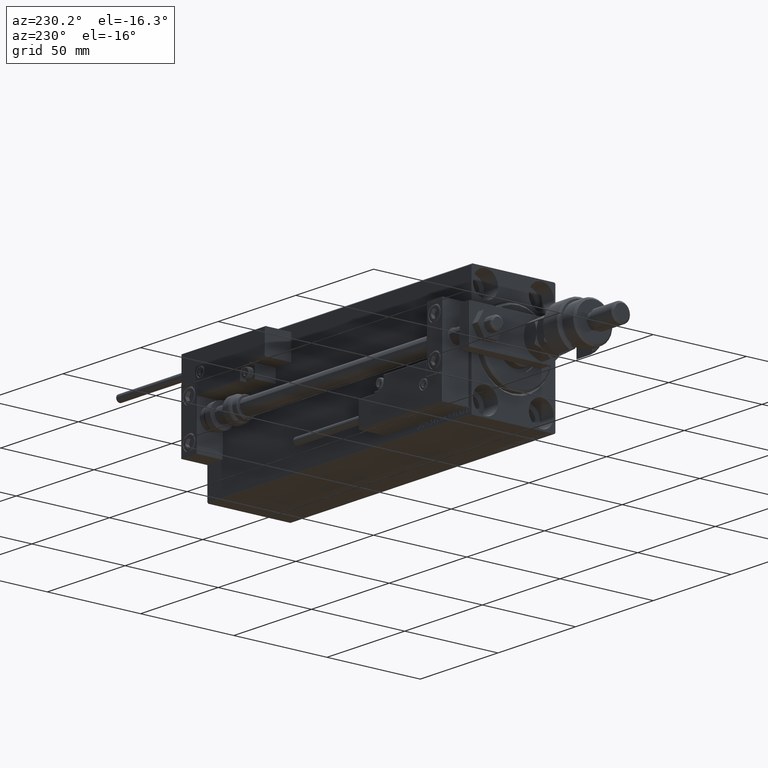
[diagram: clean part render]
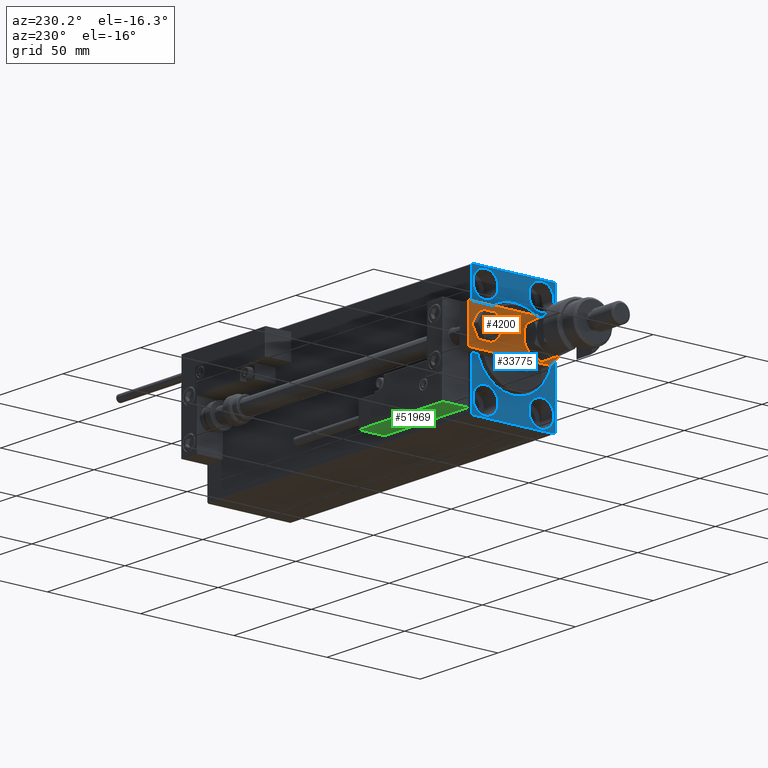
[diagram: same view with three faces highlighted in distinct colors, each labeled with its STEP entity id]
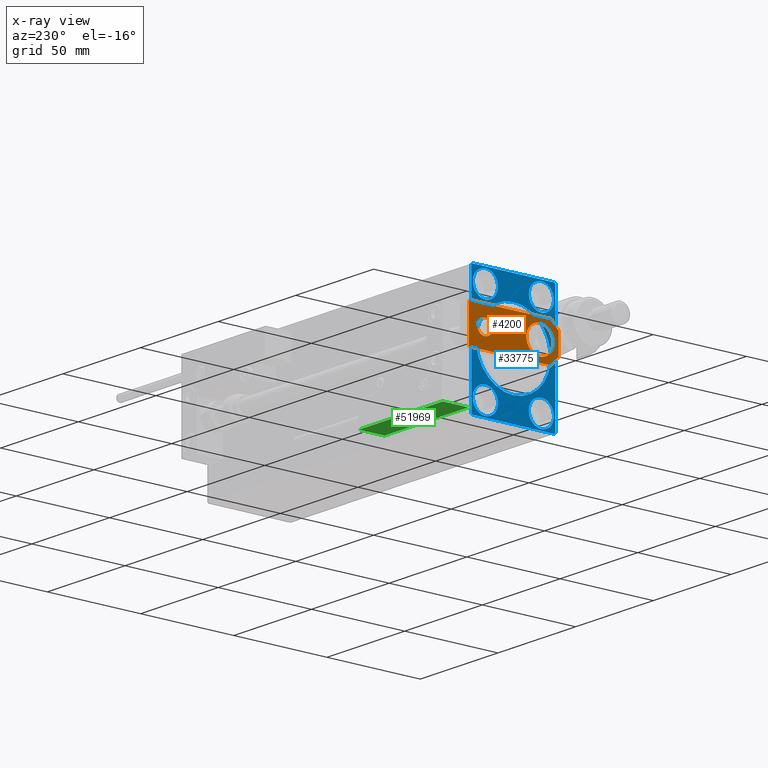
[diagram: x-ray of the same camera — body ghosted, the three highlighted faces saturated]
A machine part, auxiliary view with three faces highlighted in distinct colors.
The next image is the same camera in x-ray (body ghosted, the three faces saturated) — at least one of them is partly hidden behind the body in this view.
Their STEP definitions:

[orange] entity #4200 — the highlighted planar face has unit normal (-1, 0, 0).
#1559 = CARTESIAN_POINT ( 'NONE',  ( 10.00000000000000533, 4.239999999999986890, 6.000000000000000000 ) ) ;
#2961 = VECTOR ( 'NONE', #25885, 999.9999999999998863 ) ;
#3668 = ORIENTED_EDGE ( 'NONE', *, *, #17051, .T. ) ;
#4157 = CARTESIAN_POINT ( 'NONE',  ( 10.00000000000000178, 48.00000000000000000, 6.000000000000000000 ) ) ;
#4200 = ADVANCED_FACE ( 'NONE', ( #24413, #49541, #24679 ), #16109, .T. ) ;
#4723 = ORIENTED_EDGE ( 'NONE', *, *, #22268, .T. ) ;
#4763 = ORIENTED_EDGE ( 'NONE', *, *, #42420, .T. ) ;
#7249 = VERTEX_POINT ( 'NONE', #45775 ) ;
#7566 = LINE ( 'NONE', #23921, #33367 ) ;
#7806 = CARTESIAN_POINT ( 'NONE',  ( 0.000000000000000000, 0.000000000000000000, 6.000000000000000000 ) ) ;
#8899 = EDGE_LOOP ( 'NONE', ( #19711, #4763, #9504, #41975, #4723, #3668 ) ) ;
#9007 = CARTESIAN_POINT ( 'NONE',  ( -10.00000000000000000, 48.00000000000000000, 6.000000000000000000 ) ) ;
#9504 = ORIENTED_EDGE ( 'NONE', *, *, #13501, .T. ) ;
#9881 = LINE ( 'NONE', #26244, #30248 ) ;
#10281 = VECTOR ( 'NONE', #19093, 1000.000000000000000 ) ;
#10588 = CARTESIAN_POINT ( 'NONE',  ( -2.880000000000006999, -2.879999999999998561, 6.000000000000000000 ) ) ;
#10615 = CIRCLE ( 'NONE', #20841, 7.250000000000000000 ) ;
#11973 = VERTEX_POINT ( 'NONE', #24668 ) ;
#12018 = DIRECTION ( 'NONE',  ( -1.084202172485504434E-16, -1.000000000000000000, 0.000000000000000000 ) ) ;
#12316 = VERTEX_POINT ( 'NONE', #23832 ) ;
#12882 = DIRECTION ( 'NONE',  ( 1.000000000000000000, 0.000000000000000000, 0.000000000000000000 ) ) ;
#13457 = EDGE_CURVE ( 'NONE', #11973, #22401, #40227, .T. ) ;
#13501 = EDGE_CURVE ( 'NONE', #12316, #7249, #7566, .T. ) ;
#14827 = CARTESIAN_POINT ( 'NONE',  ( 7.250000000000000000, 10.00000000000000355, 6.000000000000000000 ) ) ;
#15438 = ORIENTED_EDGE ( 'NONE', *, *, #13457, .F. ) ;
#16109 = PLANE ( 'NONE',  #35603 ) ;
#16144 = LINE ( 'NONE', #32240, #22430 ) ;
#16277 = AXIS2_PLACEMENT_3D ( 'NONE', #30762, #18961, #27009 ) ;
#16611 = DIRECTION ( 'NONE',  ( 0.000000000000000000, 0.000000000000000000, 1.000000000000000000 ) ) ;
#16723 = EDGE_CURVE ( 'NONE', #23289, #36679, #27388, .T. ) ;
#16878 = DIRECTION ( 'NONE',  ( -0.000000000000000000, 0.000000000000000000, 1.000000000000000000 ) ) ;
#17034 = ORIENTED_EDGE ( 'NONE', *, *, #40459, .F. ) ;
#17051 = EDGE_CURVE ( 'NONE', #31138, #34582, #30430, .T. ) ;
#17853 = ORIENTED_EDGE ( 'NONE', *, *, #36249, .F. ) ;
#18096 = CARTESIAN_POINT ( 'NONE',  ( 10.00000000000000178, 48.00000000000000000, 6.000000000000000000 ) ) ;
#18961 = DIRECTION ( 'NONE',  ( 0.000000000000000000, 0.000000000000000000, 1.000000000000000000 ) ) ;
#19093 = DIRECTION ( 'NONE',  ( -1.000000000000000000, 0.000000000000000000, 0.000000000000000000 ) ) ;
#19711 = ORIENTED_EDGE ( 'NONE', *, *, #29913, .T. ) ;
#19889 = DIRECTION ( 'NONE',  ( 1.000000000000000000, 0.000000000000000000, 0.000000000000000000 ) ) ;
#20841 = AXIS2_PLACEMENT_3D ( 'NONE', #33481, #16611, #46323 ) ;
#21937 = DIRECTION ( 'NONE',  ( -7.228014483236695816E-17, 1.000000000000000000, 0.000000000000000000 ) ) ;
#22268 = EDGE_CURVE ( 'NONE', #33394, #31138, #16144, .T. ) ;
#22401 = VERTEX_POINT ( 'NONE', #26506 ) ;
#22430 = VECTOR ( 'NONE', #21937, 1000.000000000000000 ) ;
#23289 = VERTEX_POINT ( 'NONE', #14827 ) ;
#23527 = EDGE_LOOP ( 'NONE', ( #17034, #26158 ) ) ;
#23832 = CARTESIAN_POINT ( 'NONE',  ( -5.759999999999997122, 0.000000000000000000, 6.000000000000000000 ) ) ;
#23921 = CARTESIAN_POINT ( 'NONE',  ( -10.00000000000000533, 0.000000000000000000, 6.000000000000000000 ) ) ;
#24324 = CARTESIAN_POINT ( 'NONE',  ( -10.00000000000000000, 48.00000000000000000, 6.000000000000000000 ) ) ;
#24413 = FACE_BOUND ( 'NONE', #41248, .T. ) ;
#24430 = EDGE_CURVE ( 'NONE', #7249, #33394, #9881, .T. ) ;
#24668 = CARTESIAN_POINT ( 'NONE',  ( 4.000000000000000888, 39.50000000000000000, 6.000000000000000000 ) ) ;
#24679 = FACE_BOUND ( 'NONE', #23527, .T. ) ;
#25013 = DIRECTION ( 'NONE',  ( 1.000000000000000000, 0.000000000000000000, 0.000000000000000000 ) ) ;
#25885 = DIRECTION ( 'NONE',  ( 0.7071067811865464625, -0.7071067811865486830, 0.000000000000000000 ) ) ;
#26158 = ORIENTED_EDGE ( 'NONE', *, *, #16723, .F. ) ;
#26244 = CARTESIAN_POINT ( 'NONE',  ( 2.879999999999984350, -2.879999999999999005, 6.000000000000000000 ) ) ;
#26506 = CARTESIAN_POINT ( 'NONE',  ( -4.000000000000000888, 39.50000000000000000, 6.000000000000000000 ) ) ;
#27009 = DIRECTION ( 'NONE',  ( 1.000000000000000000, 0.000000000000000000, 0.000000000000000000 ) ) ;
#27388 = CIRCLE ( 'NONE', #16277, 7.250000000000000000 ) ;
#28425 = CIRCLE ( 'NONE', #45511, 4.000000000000000888 ) ;
#28473 = DIRECTION ( 'NONE',  ( 1.000000000000000000, 0.000000000000000000, 0.000000000000000000 ) ) ;
#29913 = EDGE_CURVE ( 'NONE', #34582, #47219, #52954, .T. ) ;
#30248 = VECTOR ( 'NONE', #46829, 1000.000000000000114 ) ;
#30430 = LINE ( 'NONE', #18096, #10281 ) ;
#30762 = CARTESIAN_POINT ( 'NONE',  ( -9.629649721936179265E-32, 10.00000000000000178, 6.000000000000000000 ) ) ;
#31138 = VERTEX_POINT ( 'NONE', #4157 ) ;
#31643 = VECTOR ( 'NONE', #12018, 1000.000000000000000 ) ;
#32221 = CARTESIAN_POINT ( 'NONE',  ( -1.432611055310774642E-16, 39.50000000000000000, 6.000000000000000000 ) ) ;
#32240 = CARTESIAN_POINT ( 'NONE',  ( 10.00000000000000533, 0.000000000000000000, 6.000000000000000000 ) ) ;
#32721 = CARTESIAN_POINT ( 'NONE',  ( -7.250000000000000000, 10.00000000000000178, 6.000000000000000000 ) ) ;
#32785 = CARTESIAN_POINT ( 'NONE',  ( -1.432611055310774642E-16, 39.50000000000000000, 6.000000000000000000 ) ) ;
#33367 = VECTOR ( 'NONE', #19889, 1000.000000000000000 ) ;
#33394 = VERTEX_POINT ( 'NONE', #1559 ) ;
#33481 = CARTESIAN_POINT ( 'NONE',  ( -9.629649721936179265E-32, 10.00000000000000178, 6.000000000000000000 ) ) ;
#34582 = VERTEX_POINT ( 'NONE', #9007 ) ;
#35603 = AXIS2_PLACEMENT_3D ( 'NONE', #7806, #16878, #12882 ) ;
#36222 = DIRECTION ( 'NONE',  ( 0.000000000000000000, 0.000000000000000000, 1.000000000000000000 ) ) ;
#36249 = EDGE_CURVE ( 'NONE', #22401, #11973, #28425, .T. ) ;
#36274 = DIRECTION ( 'NONE',  ( 0.000000000000000000, 0.000000000000000000, 1.000000000000000000 ) ) ;
#36679 = VERTEX_POINT ( 'NONE', #32721 ) ;
#40227 = CIRCLE ( 'NONE', #46209, 4.000000000000000888 ) ;
#40459 = EDGE_CURVE ( 'NONE', #36679, #23289, #10615, .T. ) ;
#41248 = EDGE_LOOP ( 'NONE', ( #17853, #15438 ) ) ;
#41975 = ORIENTED_EDGE ( 'NONE', *, *, #24430, .T. ) ;
#42420 = EDGE_CURVE ( 'NONE', #47219, #12316, #51273, .T. ) ;
#45511 = AXIS2_PLACEMENT_3D ( 'NONE', #32785, #36274, #25013 ) ;
#45775 = CARTESIAN_POINT ( 'NONE',  ( 5.759999999999998010, 0.000000000000000000, 6.000000000000000000 ) ) ;
#46209 = AXIS2_PLACEMENT_3D ( 'NONE', #32221, #36222, #28473 ) ;
#46323 = DIRECTION ( 'NONE',  ( 1.000000000000000000, 0.000000000000000000, 0.000000000000000000 ) ) ;
#46829 = DIRECTION ( 'NONE',  ( 0.7071067811865492381, 0.7071067811865457964, -0.000000000000000000 ) ) ;
#47219 = VERTEX_POINT ( 'NONE', #48592 ) ;
#48592 = CARTESIAN_POINT ( 'NONE',  ( -10.00000000000000533, 4.240000000000021529, 6.000000000000000000 ) ) ;
#49541 = FACE_OUTER_BOUND ( 'NONE', #8899, .T. ) ;
#51273 = LINE ( 'NONE', #10588, #2961 ) ;
#52954 = LINE ( 'NONE', #24324, #31643 ) ;

[blue] entity #33775 — the highlighted planar face has unit normal (1, 0, 0).
#110 = ORIENTED_EDGE ( 'NONE', *, *, #27383, .F. ) ;
#339 = VERTEX_POINT ( 'NONE', #44785 ) ;
#480 = ORIENTED_EDGE ( 'NONE', *, *, #3587, .T. ) ;
#599 = CARTESIAN_POINT ( 'NONE',  ( 0.000000000000000000, 22.50000000000000000, -32.50000000000000711 ) ) ;
#1304 = CARTESIAN_POINT ( 'NONE',  ( 0.000000000000000000, 15.00000000000000355, 18.25000000000000355 ) ) ;
#1453 = CARTESIAN_POINT ( 'NONE',  ( 0.000000000000000000, 22.49999999999999289, 31.99999999999999289 ) ) ;
#1541 = CARTESIAN_POINT ( 'NONE',  ( 0.000000000000000000, 21.99999999999999289, 32.50000000000000000 ) ) ;
#1551 = EDGE_LOOP ( 'NONE', ( #47110, #18253 ) ) ;
#2084 = EDGE_LOOP ( 'NONE', ( #45173, #19469, #5755, #480, #13443, #21293, #47297, #31530 ) ) ;
#2104 = AXIS2_PLACEMENT_3D ( 'NONE', #14451, #39088, #17209 ) ;
#2360 = DIRECTION ( 'NONE',  ( 0.000000000000000000, 1.000000000000000000, 0.000000000000000000 ) ) ;
#3587 = EDGE_CURVE ( 'NONE', #29618, #26460, #14149, .T. ) ;
#3766 = CARTESIAN_POINT ( 'NONE',  ( 0.000000000000000000, -14.99999999999999645, 31.75000000000000000 ) ) ;
#4237 = DIRECTION ( 'NONE',  ( 1.000000000000000000, 0.000000000000000000, 0.000000000000000000 ) ) ;
#4291 = AXIS2_PLACEMENT_3D ( 'NONE', #39962, #18277, #34606 ) ;
#4408 = AXIS2_PLACEMENT_3D ( 'NONE', #20145, #36228, #15870 ) ;
#4681 = DIRECTION ( 'NONE',  ( -1.000000000000000000, 0.000000000000000000, 0.000000000000000000 ) ) ;
#4996 = DIRECTION ( 'NONE',  ( 0.000000000000000000, -0.7071067811865279218, -0.7071067811865672237 ) ) ;
#5004 = ORIENTED_EDGE ( 'NONE', *, *, #31763, .F. ) ;
#5581 = DIRECTION ( 'NONE',  ( -0.000000000000000000, 0.7071067811865425767, -0.7071067811865525687 ) ) ;
#5755 = ORIENTED_EDGE ( 'NONE', *, *, #21485, .F. ) ;
#5911 = DIRECTION ( 'NONE',  ( -0.000000000000000000, -0.7071067811865474617, 0.7071067811865474617 ) ) ;
#6206 = CARTESIAN_POINT ( 'NONE',  ( 0.000000000000000000, -15.00000000000000355, -25.00000000000000000 ) ) ;
#6467 = CARTESIAN_POINT ( 'NONE',  ( 0.000000000000000000, -14.99999999999999645, 25.00000000000000000 ) ) ;
#6646 = LINE ( 'NONE', #42561, #37065 ) ;
#6793 = CIRCLE ( 'NONE', #42736, 6.749999999999999112 ) ;
#6932 = VERTEX_POINT ( 'NONE', #30855 ) ;
#7083 = CARTESIAN_POINT ( 'NONE',  ( 0.000000000000000000, 14.99999999999999645, -18.25000000000000355 ) ) ;
#7497 = CARTESIAN_POINT ( 'NONE',  ( 0.000000000000000000, 22.50000000000000000, -31.99999999999997868 ) ) ;
#7674 = AXIS2_PLACEMENT_3D ( 'NONE', #6467, #26328, #30874 ) ;
#9048 = EDGE_CURVE ( 'NONE', #14148, #26460, #49348, .T. ) ;
#9398 = CARTESIAN_POINT ( 'NONE',  ( 0.000000000000000000, -22.50000000000000711, 32.49999999999999289 ) ) ;
#9409 = ORIENTED_EDGE ( 'NONE', *, *, #22904, .F. ) ;
#9447 = VERTEX_POINT ( 'NONE', #12875 ) ;
#9799 = CARTESIAN_POINT ( 'NONE',  ( 0.000000000000000000, -14.99999999999999645, 18.25000000000000355 ) ) ;
#9837 = DIRECTION ( 'NONE',  ( -0.000000000000000000, 0.7071067811865474617, 0.7071067811865474617 ) ) ;
#9859 = VERTEX_POINT ( 'NONE', #50474 ) ;
#10463 = LINE ( 'NONE', #43128, #49595 ) ;
#10662 = EDGE_LOOP ( 'NONE', ( #5004, #17946 ) ) ;
#11994 = VERTEX_POINT ( 'NONE', #3766 ) ;
#12402 = DIRECTION ( 'NONE',  ( 1.000000000000000000, 0.000000000000000000, 0.000000000000000000 ) ) ;
#12678 = DIRECTION ( 'NONE',  ( 0.000000000000000000, -1.067522139062650425E-16, 1.000000000000000000 ) ) ;
#12875 = CARTESIAN_POINT ( 'NONE',  ( 0.000000000000000000, 14.99999999999999645, -31.75000000000000000 ) ) ;
#13044 = LINE ( 'NONE', #21062, #22396 ) ;
#13443 = ORIENTED_EDGE ( 'NONE', *, *, #9048, .F. ) ;
#13785 = CARTESIAN_POINT ( 'NONE',  ( 0.000000000000000000, 2.449293598294701780E-15, -19.99999999999996092 ) ) ;
#13866 = EDGE_CURVE ( 'NONE', #19278, #9859, #10463, .T. ) ;
#14018 = DIRECTION ( 'NONE',  ( 1.000000000000000000, 0.000000000000000000, 0.000000000000000000 ) ) ;
#14042 = CIRCLE ( 'NONE', #26921, 19.99999999999996092 ) ;
#14148 = VERTEX_POINT ( 'NONE', #7497 ) ;
#14149 = LINE ( 'NONE', #34244, #35680 ) ;
#14451 = CARTESIAN_POINT ( 'NONE',  ( 0.000000000000000000, -14.99999999999999645, 25.00000000000000000 ) ) ;
#14815 = FACE_OUTER_BOUND ( 'NONE', #2084, .T. ) ;
#15870 = DIRECTION ( 'NONE',  ( 0.000000000000000000, 0.000000000000000000, 1.000000000000000000 ) ) ;
#16213 = CARTESIAN_POINT ( 'NONE',  ( 0.000000000000000000, 14.99999999999999645, -25.00000000000000000 ) ) ;
#17209 = DIRECTION ( 'NONE',  ( 0.000000000000000000, 0.000000000000000000, 1.000000000000000000 ) ) ;
#17946 = ORIENTED_EDGE ( 'NONE', *, *, #45501, .F. ) ;
#18005 = VERTEX_POINT ( 'NONE', #9799 ) ;
#18253 = ORIENTED_EDGE ( 'NONE', *, *, #41946, .T. ) ;
#18264 = EDGE_CURVE ( 'NONE', #30682, #6932, #27436, .T. ) ;
#18277 = DIRECTION ( 'NONE',  ( -1.000000000000000000, 0.000000000000000000, 0.000000000000000000 ) ) ;
#18310 = DIRECTION ( 'NONE',  ( 0.000000000000000000, 0.000000000000000000, -1.000000000000000000 ) ) ;
#18571 = FACE_BOUND ( 'NONE', #1551, .T. ) ;
#19278 = VERTEX_POINT ( 'NONE', #51249 ) ;
#19469 = ORIENTED_EDGE ( 'NONE', *, *, #31995, .T. ) ;
#20145 = CARTESIAN_POINT ( 'NONE',  ( 0.000000000000000000, -15.00000000000000355, -25.00000000000000000 ) ) ;
#20502 = DIRECTION ( 'NONE',  ( 0.000000000000000000, 0.000000000000000000, 1.000000000000000000 ) ) ;
#20772 = AXIS2_PLACEMENT_3D ( 'NONE', #16213, #43828, #35513 ) ;
#21062 = CARTESIAN_POINT ( 'NONE',  ( 0.000000000000000000, 22.49999999999999289, 32.50000000000000000 ) ) ;
#21293 = ORIENTED_EDGE ( 'NONE', *, *, #35462, .T. ) ;
#21485 = EDGE_CURVE ( 'NONE', #29618, #36946, #13044, .T. ) ;
#22065 = DIRECTION ( 'NONE',  ( -1.000000000000000000, 0.000000000000000000, 0.000000000000000000 ) ) ;
#22130 = ORIENTED_EDGE ( 'NONE', *, *, #32868, .F. ) ;
#22336 = CARTESIAN_POINT ( 'NONE',  ( 0.000000000000000000, 0.000000000000000000, 0.000000000000000000 ) ) ;
#22396 = VECTOR ( 'NONE', #37406, 1000.000000000000000 ) ;
#22548 = DIRECTION ( 'NONE',  ( -1.000000000000000000, 0.000000000000000000, 0.000000000000000000 ) ) ;
#22593 = VERTEX_POINT ( 'NONE', #37147 ) ;
#22904 = EDGE_CURVE ( 'NONE', #45307, #9447, #43894, .T. ) ;
#23244 = VECTOR ( 'NONE', #4996, 1000.000000000000000 ) ;
#23581 = ORIENTED_EDGE ( 'NONE', *, *, #36007, .F. ) ;
#24372 = EDGE_CURVE ( 'NONE', #19278, #22593, #6646, .T. ) ;
#24702 = CIRCLE ( 'NONE', #26436, 19.99999999999996092 ) ;
#25072 = EDGE_CURVE ( 'NONE', #40444, #40730, #24702, .T. ) ;
#26328 = DIRECTION ( 'NONE',  ( -1.000000000000000000, 0.000000000000000000, 0.000000000000000000 ) ) ;
#26436 = AXIS2_PLACEMENT_3D ( 'NONE', #27175, #12402, #49331 ) ;
#26460 = VERTEX_POINT ( 'NONE', #1453 ) ;
#26921 = AXIS2_PLACEMENT_3D ( 'NONE', #50276, #4237, #40938 ) ;
#26954 = CIRCLE ( 'NONE', #2104, 6.749999999999999112 ) ;
#27072 = CARTESIAN_POINT ( 'NONE',  ( 0.000000000000000000, -21.99999999999999289, 32.49999999999999289 ) ) ;
#27175 = CARTESIAN_POINT ( 'NONE',  ( 0.000000000000000000, 0.000000000000000000, 0.000000000000000000 ) ) ;
#27383 = EDGE_CURVE ( 'NONE', #339, #32709, #38451, .T. ) ;
#27436 = CIRCLE ( 'NONE', #45361, 6.749999999999999112 ) ;
#27754 = EDGE_CURVE ( 'NONE', #6932, #30682, #6793, .T. ) ;
#28036 = EDGE_LOOP ( 'NONE', ( #9409, #22130 ) ) ;
#28151 = VERTEX_POINT ( 'NONE', #49608 ) ;
#29178 = AXIS2_PLACEMENT_3D ( 'NONE', #22336, #14018, #18310 ) ;
#29552 = CARTESIAN_POINT ( 'NONE',  ( 0.000000000000000000, -15.00000000000000355, -18.25000000000000355 ) ) ;
#29586 = CARTESIAN_POINT ( 'NONE',  ( 0.000000000000000000, 15.00000000000000355, 25.00000000000000000 ) ) ;
#29618 = VERTEX_POINT ( 'NONE', #1541 ) ;
#29684 = CARTESIAN_POINT ( 'NONE',  ( 0.000000000000000000, -22.50000000000000711, 31.99999999999999289 ) ) ;
#30215 = LINE ( 'NONE', #29684, #35935 ) ;
#30682 = VERTEX_POINT ( 'NONE', #1304 ) ;
#30855 = CARTESIAN_POINT ( 'NONE',  ( 0.000000000000000000, 15.00000000000000355, 31.75000000000000000 ) ) ;
#30874 = DIRECTION ( 'NONE',  ( 0.000000000000000000, 0.000000000000000000, 1.000000000000000000 ) ) ;
#31530 = ORIENTED_EDGE ( 'NONE', *, *, #13866, .T. ) ;
#31532 = VECTOR ( 'NONE', #12678, 1000.000000000000000 ) ;
#31763 = EDGE_CURVE ( 'NONE', #11994, #18005, #43620, .T. ) ;
#31995 = EDGE_CURVE ( 'NONE', #28151, #36946, #30215, .T. ) ;
#32449 = CARTESIAN_POINT ( 'NONE',  ( 0.000000000000000000, 0.000000000000000000, 19.99999999999996092 ) ) ;
#32709 = VERTEX_POINT ( 'NONE', #29552 ) ;
#32838 = CARTESIAN_POINT ( 'NONE',  ( 0.000000000000000000, 15.00000000000000355, 25.00000000000000000 ) ) ;
#32868 = EDGE_CURVE ( 'NONE', #9447, #45307, #48761, .T. ) ;
#33017 = EDGE_CURVE ( 'NONE', #28151, #9859, #45029, .T. ) ;
#33142 = LINE ( 'NONE', #37940, #23244 ) ;
#33775 = ADVANCED_FACE ( 'NONE', ( #18571, #51495, #34638, #51227, #50703, #14815 ), #47756, .F. ) ;
#34244 = CARTESIAN_POINT ( 'NONE',  ( 0.000000000000000000, 21.99999999999999289, 32.50000000000000000 ) ) ;
#34606 = DIRECTION ( 'NONE',  ( 0.000000000000000000, 0.000000000000000000, 1.000000000000000000 ) ) ;
#34638 = FACE_BOUND ( 'NONE', #10662, .T. ) ;
#35462 = EDGE_CURVE ( 'NONE', #14148, #22593, #33142, .T. ) ;
#35513 = DIRECTION ( 'NONE',  ( 0.000000000000000000, 0.000000000000000000, 1.000000000000000000 ) ) ;
#35680 = VECTOR ( 'NONE', #5581, 999.9999999999998863 ) ;
#35935 = VECTOR ( 'NONE', #9837, 1000.000000000000114 ) ;
#36007 = EDGE_CURVE ( 'NONE', #32709, #339, #38634, .T. ) ;
#36228 = DIRECTION ( 'NONE',  ( -1.000000000000000000, 0.000000000000000000, 0.000000000000000000 ) ) ;
#36946 = VERTEX_POINT ( 'NONE', #27072 ) ;
#37065 = VECTOR ( 'NONE', #2360, 1000.000000000000000 ) ;
#37147 = CARTESIAN_POINT ( 'NONE',  ( 0.000000000000000000, 21.99999999999998579, -32.50000000000000711 ) ) ;
#37406 = DIRECTION ( 'NONE',  ( 0.000000000000000000, -1.000000000000000000, -1.541976423090495387E-16 ) ) ;
#37601 = AXIS2_PLACEMENT_3D ( 'NONE', #6206, #22548, #38873 ) ;
#37940 = CARTESIAN_POINT ( 'NONE',  ( 0.000000000000000000, 22.50000000000000000, -31.99999999999997868 ) ) ;
#38399 = DIRECTION ( 'NONE',  ( 0.000000000000000000, 0.000000000000000000, 1.000000000000000000 ) ) ;
#38451 = CIRCLE ( 'NONE', #37601, 6.749999999999999112 ) ;
#38634 = CIRCLE ( 'NONE', #4408, 6.749999999999999112 ) ;
#38873 = DIRECTION ( 'NONE',  ( 0.000000000000000000, 0.000000000000000000, 1.000000000000000000 ) ) ;
#39088 = DIRECTION ( 'NONE',  ( -1.000000000000000000, 0.000000000000000000, 0.000000000000000000 ) ) ;
#39962 = CARTESIAN_POINT ( 'NONE',  ( 0.000000000000000000, 14.99999999999999645, -25.00000000000000000 ) ) ;
#40331 = EDGE_LOOP ( 'NONE', ( #52274, #47966 ) ) ;
#40444 = VERTEX_POINT ( 'NONE', #32449 ) ;
#40730 = VERTEX_POINT ( 'NONE', #13785 ) ;
#40938 = DIRECTION ( 'NONE',  ( 0.000000000000000000, 0.000000000000000000, -1.000000000000000000 ) ) ;
#41946 = EDGE_CURVE ( 'NONE', #40730, #40444, #14042, .T. ) ;
#42452 = EDGE_LOOP ( 'NONE', ( #23581, #110 ) ) ;
#42561 = CARTESIAN_POINT ( 'NONE',  ( 0.000000000000000000, -22.50000000000000711, -32.50000000000000711 ) ) ;
#42736 = AXIS2_PLACEMENT_3D ( 'NONE', #32838, #4681, #20502 ) ;
#43128 = CARTESIAN_POINT ( 'NONE',  ( 0.000000000000000000, -21.99999999999995026, -32.50000000000000711 ) ) ;
#43620 = CIRCLE ( 'NONE', #7674, 6.749999999999999112 ) ;
#43828 = DIRECTION ( 'NONE',  ( -1.000000000000000000, 0.000000000000000000, 0.000000000000000000 ) ) ;
#43894 = CIRCLE ( 'NONE', #20772, 6.749999999999999112 ) ;
#44785 = CARTESIAN_POINT ( 'NONE',  ( 0.000000000000000000, -15.00000000000000355, -31.75000000000000000 ) ) ;
#45029 = LINE ( 'NONE', #9398, #52210 ) ;
#45173 = ORIENTED_EDGE ( 'NONE', *, *, #33017, .F. ) ;
#45307 = VERTEX_POINT ( 'NONE', #7083 ) ;
#45361 = AXIS2_PLACEMENT_3D ( 'NONE', #29586, #22065, #38399 ) ;
#45501 = EDGE_CURVE ( 'NONE', #18005, #11994, #26954, .T. ) ;
#45821 = DIRECTION ( 'NONE',  ( 0.000000000000000000, 0.000000000000000000, -1.000000000000000000 ) ) ;
#47110 = ORIENTED_EDGE ( 'NONE', *, *, #25072, .T. ) ;
#47297 = ORIENTED_EDGE ( 'NONE', *, *, #24372, .F. ) ;
#47756 = PLANE ( 'NONE',  #29178 ) ;
#47966 = ORIENTED_EDGE ( 'NONE', *, *, #18264, .F. ) ;
#48761 = CIRCLE ( 'NONE', #4291, 6.749999999999999112 ) ;
#49331 = DIRECTION ( 'NONE',  ( 0.000000000000000000, 0.000000000000000000, -1.000000000000000000 ) ) ;
#49348 = LINE ( 'NONE', #599, #31532 ) ;
#49595 = VECTOR ( 'NONE', #5911, 1000.000000000000114 ) ;
#49608 = CARTESIAN_POINT ( 'NONE',  ( 0.000000000000000000, -22.50000000000000711, 31.99999999999999289 ) ) ;
#50276 = CARTESIAN_POINT ( 'NONE',  ( 0.000000000000000000, 0.000000000000000000, 0.000000000000000000 ) ) ;
#50474 = CARTESIAN_POINT ( 'NONE',  ( 0.000000000000000000, -22.50000000000000711, -31.99999999999995381 ) ) ;
#50703 = FACE_BOUND ( 'NONE', #42452, .T. ) ;
#51227 = FACE_BOUND ( 'NONE', #40331, .T. ) ;
#51249 = CARTESIAN_POINT ( 'NONE',  ( 0.000000000000000000, -21.99999999999995026, -32.50000000000000711 ) ) ;
#51495 = FACE_BOUND ( 'NONE', #28036, .T. ) ;
#52210 = VECTOR ( 'NONE', #45821, 1000.000000000000000 ) ;
#52274 = ORIENTED_EDGE ( 'NONE', *, *, #27754, .F. ) ;

[green] entity #51969 — the highlighted planar face has unit normal (0, 0, 1).
#136 = CARTESIAN_POINT ( 'NONE',  ( 27.00000000000006395, 20.00000000000001776, 0.000000000000000000 ) ) ;
#314 = LINE ( 'NONE', #33261, #28316 ) ;
#843 = VERTEX_POINT ( 'NONE', #10158 ) ;
#1700 = VECTOR ( 'NONE', #29759, 1000.000000000000000 ) ;
#1772 = VERTEX_POINT ( 'NONE', #29110 ) ;
#3245 = CARTESIAN_POINT ( 'NONE',  ( 27.00000000000006395, 20.00000000000001776, 13.70000000000000107 ) ) ;
#3292 = ORIENTED_EDGE ( 'NONE', *, *, #10646, .T. ) ;
#4588 = DIRECTION ( 'NONE',  ( -0.000000000000000000, -0.000000000000000000, -1.000000000000000000 ) ) ;
#7915 = DIRECTION ( 'NONE',  ( -1.000000000000000000, 6.424901762877062263E-17, 0.000000000000000000 ) ) ;
#9049 = FACE_OUTER_BOUND ( 'NONE', #43007, .T. ) ;
#10158 = CARTESIAN_POINT ( 'NONE',  ( -26.99999999999993605, 20.00000000000002132, 0.000000000000000000 ) ) ;
#10646 = EDGE_CURVE ( 'NONE', #13378, #843, #40340, .T. ) ;
#12526 = DIRECTION ( 'NONE',  ( 1.000000000000000000, -6.424901762877063495E-17, -0.000000000000000000 ) ) ;
#13378 = VERTEX_POINT ( 'NONE', #14270 ) ;
#13604 = DIRECTION ( 'NONE',  ( 1.000000000000000000, -6.424901762877063495E-17, 0.000000000000000000 ) ) ;
#14270 = CARTESIAN_POINT ( 'NONE',  ( 27.00000000000006395, 20.00000000000001776, 0.000000000000000000 ) ) ;
#15217 = EDGE_CURVE ( 'NONE', #1772, #40453, #37143, .T. ) ;
#16312 = VECTOR ( 'NONE', #12526, 1000.000000000000000 ) ;
#16339 = EDGE_CURVE ( 'NONE', #40453, #13378, #22770, .T. ) ;
#17047 = CARTESIAN_POINT ( 'NONE',  ( 27.00000000000006395, 20.00000000000001776, 13.70000000000000107 ) ) ;
#22764 = ORIENTED_EDGE ( 'NONE', *, *, #33987, .F. ) ;
#22770 = LINE ( 'NONE', #39097, #1700 ) ;
#25682 = PLANE ( 'NONE',  #36344 ) ;
#28316 = VECTOR ( 'NONE', #4588, 1000.000000000000000 ) ;
#29110 = CARTESIAN_POINT ( 'NONE',  ( -26.99999999999993605, 20.00000000000002132, 13.70000000000000107 ) ) ;
#29759 = DIRECTION ( 'NONE',  ( -0.000000000000000000, -0.000000000000000000, -1.000000000000000000 ) ) ;
#33261 = CARTESIAN_POINT ( 'NONE',  ( -26.99999999999993605, 20.00000000000002132, 14.00000000000000000 ) ) ;
#33762 = ORIENTED_EDGE ( 'NONE', *, *, #15217, .T. ) ;
#33987 = EDGE_CURVE ( 'NONE', #1772, #843, #314, .T. ) ;
#34229 = CARTESIAN_POINT ( 'NONE',  ( 27.00000000000006395, 20.00000000000001776, 14.00000000000000000 ) ) ;
#36344 = AXIS2_PLACEMENT_3D ( 'NONE', #34229, #50559, #13604 ) ;
#37143 = LINE ( 'NONE', #17047, #16312 ) ;
#38287 = ORIENTED_EDGE ( 'NONE', *, *, #16339, .T. ) ;
#39097 = CARTESIAN_POINT ( 'NONE',  ( 27.00000000000006395, 20.00000000000001776, 14.00000000000000000 ) ) ;
#40340 = LINE ( 'NONE', #136, #43545 ) ;
#40453 = VERTEX_POINT ( 'NONE', #3245 ) ;
#43007 = EDGE_LOOP ( 'NONE', ( #22764, #33762, #38287, #3292 ) ) ;
#43545 = VECTOR ( 'NONE', #7915, 1000.000000000000000 ) ;
#50559 = DIRECTION ( 'NONE',  ( -6.424901762877063495E-17, -1.000000000000000000, 0.000000000000000000 ) ) ;
#51969 = ADVANCED_FACE ( 'NONE', ( #9049 ), #25682, .F. ) ;